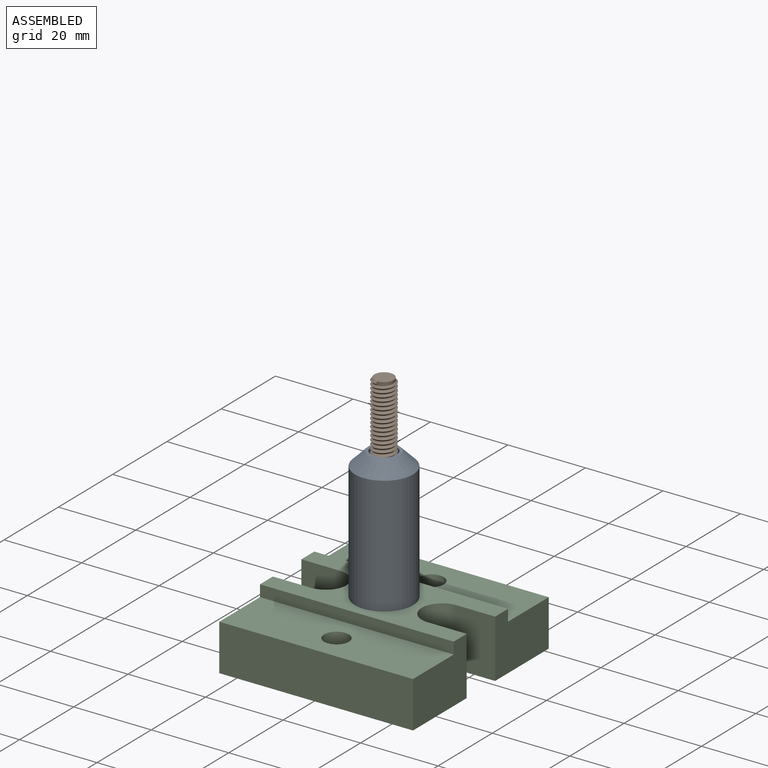
[diagram: assembled view]
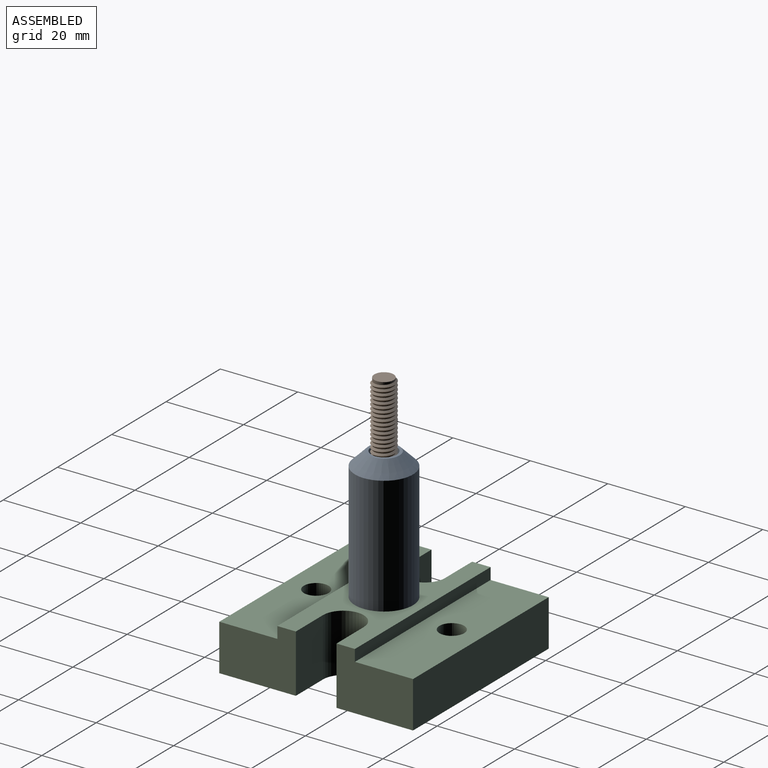
[diagram: assembled view, second angle]
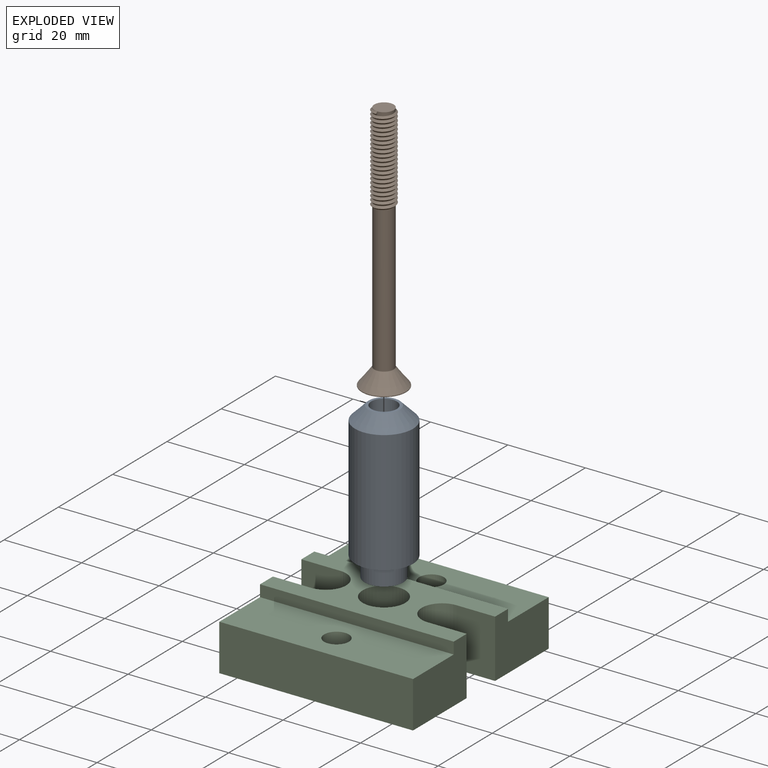
[diagram: exploded view]
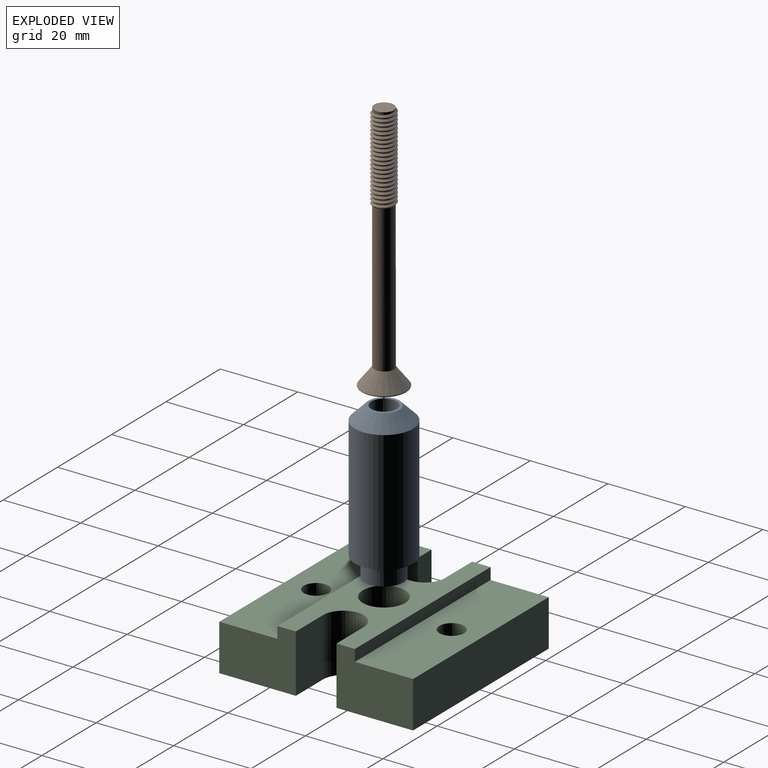
[diagram: exploded view, second angle]
ASSEMBLY  parts=3 mates=2
PART A: 7 faces, bbox 15x15x40 mm
  f0: plane 8x8mm, normal (0,0,1), area 16.1mm2, adj f1,f6
  f1: cylinder r=3.3mm len=40mm, axis (0,0,1), area 829.4mm2, adj f0,f2
  f2: plane 10x10mm, normal (0,0,-1), area 44.3mm2, adj f1,f3
  f3: cylinder r=5mm len=10mm, axis (0,0,1), area 157.1mm2, adj f2,f4
  f4: plane 15x15mm, normal (0,0,-1), area 98.2mm2, adj f3,f5
  f5: cylinder r=7.5mm len=31.5mm, axis (0,0,1), area 1484.4mm2, adj f4,f6
  f6: cone r=4mm half-angle=45deg, axis (0,0,-1), area 178.8mm2, adj f0,f5
PART B: 39 faces, bbox 12.5x12.5x65 mm
  f0: cylinder r=2.5mm len=38.55mm, axis (0,0,-1), area 594.3mm2, adj f1,f24,f36,f37,f38
  f1: cylinder r=2.5mm len=5mm, axis (0,0,-1), area 1.9mm2, adj f0,f2,f37,f38
  f2: cylinder r=2.5mm len=5mm, axis (0,0,-1), area 1.9mm2, adj f1,f3,f37,f38
  f3: cylinder r=2.5mm len=5mm, axis (0,0,-1), area 1.9mm2, adj f2,f4,f37,f38
  f4: cylinder r=2.5mm len=5mm, axis (0,0,-1), area 1.9mm2, adj f3,f5,f37,f38
  f5: cylinder r=2.5mm len=5mm, axis (0,0,-1), area 1.9mm2, adj f4,f6,f37,f38
  f6: cylinder r=2.5mm len=5mm, axis (0,0,-1), area 1.9mm2, adj f5,f7,f37,f38
  f7: cylinder r=2.5mm len=5mm, axis (0,0,-1), area 1.9mm2, adj f6,f8,f37,f38
  f8: cylinder r=2.5mm len=5mm, axis (0,0,-1), area 1.9mm2, adj f7,f9,f37,f38
  f9: cylinder r=2.5mm len=5mm, axis (0,0,-1), area 1.9mm2, adj f8,f10,f37,f38
  f10: cylinder r=2.5mm len=5mm, axis (0,0,-1), area 1.9mm2, adj f9,f11,f37,f38
  f11: cylinder r=2.5mm len=5mm, axis (0,0,-1), area 1.9mm2, adj f10,f12,f37,f38
  f12: cylinder r=2.5mm len=5mm, axis (0,0,-1), area 1.9mm2, adj f11,f13,f37,f38
  f13: cylinder r=2.5mm len=5mm, axis (0,0,-1), area 1.9mm2, adj f12,f14,f37,f38
  f14: cylinder r=2.5mm len=5mm, axis (0,0,-1), area 1.9mm2, adj f13,f15,f37,f38
  f15: cylinder r=2.5mm len=5mm, axis (0,0,-1), area 1.9mm2, adj f14,f16,f37,f38
  f16: cylinder r=2.5mm len=5mm, axis (0,0,-1), area 1.9mm2, adj f15,f17,f37,f38
  f17: cylinder r=2.5mm len=5mm, axis (0,0,-1), area 1.9mm2, adj f16,f18,f37,f38
  f18: cylinder r=2.5mm len=5mm, axis (0,0,-1), area 1.9mm2, adj f17,f19,f37,f38
  f19: cylinder r=2.5mm len=5mm, axis (0,0,-1), area 1.9mm2, adj f18,f20,f37,f38
  f20: cylinder r=2.5mm len=5mm, axis (0,0,-1), area 1.9mm2, adj f19,f21,f37,f38
  f21: cylinder r=2.5mm len=5mm, axis (0,0,-1), area 1.9mm2, adj f20,f22,f37,f38
  f22: cylinder r=2.5mm len=5mm, axis (0,0,-1), area 7.9mm2, adj f21,f23,f35,f37
  f23: plane 5x5mm, normal (0,0,-1), area 19.6mm2, adj f22
  f24: torus R=2.7mm, axis (0,0,-1), area 2.1mm2, adj f0,f25
  f25: cone r=5.72mm half-angle=37.6deg, axis (0,0,1), area 135mm2, adj f24,f26
  f26: torus R=5.56mm, axis (0,0,-1), area 16mm2, adj f25,f27
  f27: plane 11.12x11.12mm, normal (0,0,1), area 83.2mm2, adj f26,f28,f29,f30,f31,f32,f33
  f28: plane 3x2.31mm, normal (0,1,0), area 6.9mm2, adj f27,f29,f33,f34
  f29: plane 3x2mm, normal (0.87,0.5,0), area 6.9mm2, adj f27,f28,f30,f34
  f30: plane 3x2mm, normal (0.87,-0.5,0), area 6.9mm2, adj f27,f29,f31,f34
  f31: plane 3x2.31mm, normal (0,-1,0), area 6.9mm2, adj f27,f30,f32,f34
  f32: plane 3x2mm, normal (-0.87,-0.5,0), area 6.9mm2, adj f27,f31,f33,f34
  f33: plane 3x2mm, normal (-0.87,0.5,0), area 6.9mm2, adj f27,f28,f32,f34
  f34: plane 4.62x4mm, normal (0,0,1), area 13.9mm2, adj f28,f29,f30,f31,f32,f33
  f35: plane 0.88x0.44mm, normal (1,0,0), area 0.2mm2, adj f22,f37,f38
  f36: plane 0.88x0.44mm, normal (0,-1,0), area 0.2mm2, adj f0,f37,f38
  f37: bspline ~22.69x5.88mm, area 236.9mm2, adj f0,f1,f2,f3,f4,f5,f6,f7
  f38: bspline ~22.69x5.88mm, area 236.8mm2, adj f0,f1,f2,f3,f4,f5,f6,f7
PART C: 24 faces, bbox 50x50x15 mm
  f0: plane 19.75x15mm, normal (1,0,0), area 251.2mm2, adj f2,f3,f4,f8,f9,f13
  f1: plane 19.75x15mm, normal (-1,0,0), area 251.2mm2, adj f2,f3,f4,f8,f9,f15
  f2: plane 50x50mm, normal (0,0,-1), area 1922.6mm2, adj f0,f1,f4,f5,f10,f11,f12,f13
  f3: plane 50x20mm, normal (0,0,1), area 608.4mm2, adj f0,f1,f7,f8,f10,f11,f12,f13
  f4: plane 50x12mm, normal (0,-1,0), area 600mm2, adj f0,f1,f2,f9
  f5: plane 50x12mm, normal (0,1,0), area 600mm2, adj f2,f6,f10,f11
  f6: plane 50x15mm, normal (0,0,1), area 717.8mm2, adj f5,f7,f10,f11,f22
  f7: plane 50x3mm, normal (0,1,0), area 150mm2, adj f3,f6,f10,f11
  f8: plane 50x3mm, normal (0,-1,0), area 150mm2, adj f0,f1,f3,f9
  f9: plane 50x15mm, normal (0,0,1), area 717.8mm2, adj f0,f1,f4,f8,f23
  f10: plane 19.75x15mm, normal (1,0,0), area 251.3mm2, adj f2,f3,f5,f6,f7,f12
  f11: plane 19.75x15mm, normal (-1,0,0), area 251.3mm2, adj f2,f3,f5,f6,f7,f17
  f12: plane 15x10mm, normal (0,-1,0), area 150mm2, adj f2,f3,f10,f14
  f13: plane 15x10mm, normal (0,1,0), area 150mm2, adj f0,f2,f3,f14
  f14: cylinder r=5.25mm len=15mm, axis (0,0,1), area 247.4mm2, adj f2,f3,f12,f13
  f15: plane 15x10mm, normal (0,1,0), area 150mm2, adj f1,f2,f3,f16
  f16: cylinder r=5.25mm len=15mm, axis (0,0,1), area 247.4mm2, adj f2,f3,f15,f17
  f17: plane 15x10mm, normal (0,-1,0), area 150mm2, adj f2,f3,f11,f16
  f18: cylinder r=3.3mm len=6.6mm, axis (0,0,1), area 82.9mm2, adj f19,f21
  f19: plane 11x11mm, normal (0,0,1), area 60.8mm2, adj f18,f20
  f20: cylinder r=5.5mm len=11mm, axis (0,0,1), area 207.3mm2, adj f3,f19
  f21: cone r=3.3mm half-angle=45deg, axis (0,0,-1), area 257.7mm2, adj f2,f18
  f22: cylinder r=3.2mm len=12mm, axis (0,0,1), area 241.3mm2, adj f2,f6
  f23: cylinder r=3.2mm len=12mm, axis (0,0,1), area 241.3mm2, adj f2,f9
PLACE A t=(22.32,33.91,-47.65)mm
PLACE B rot(axis=(-1,0,0),180deg) t=(22.32,33.91,9.53)mm
PLACE C t=(-2.68,8.91,-56.65)mm
MATE fastened C.f21 <-> A.f1  axis (0,0,1) through (22.32,33.91,-47.65)mm
MATE revolute B.f0 <-> C.f21  axis (0,0,-1) through (22.32,33.91,-55.15)mm
